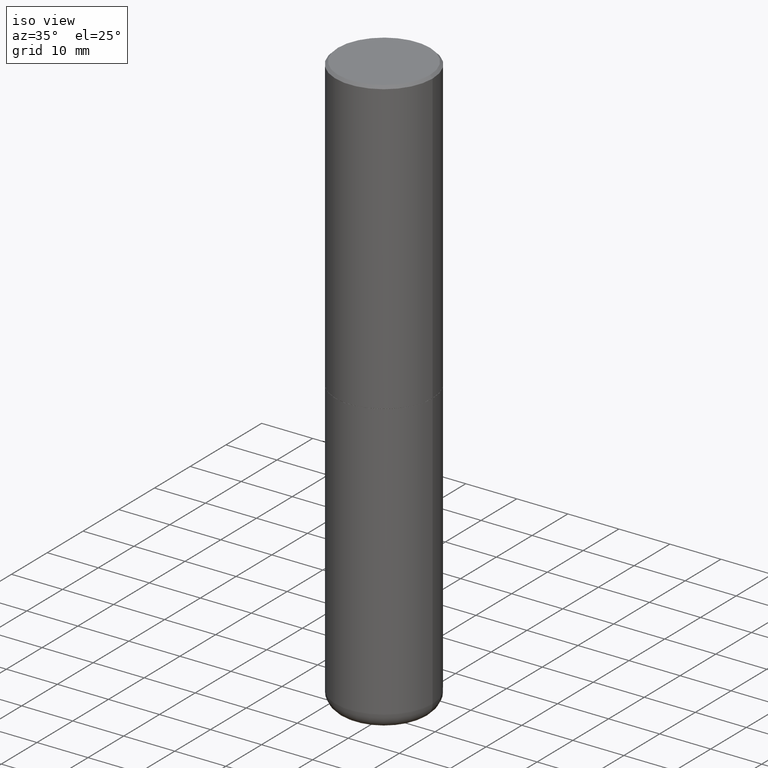
[diagram: clean part render]
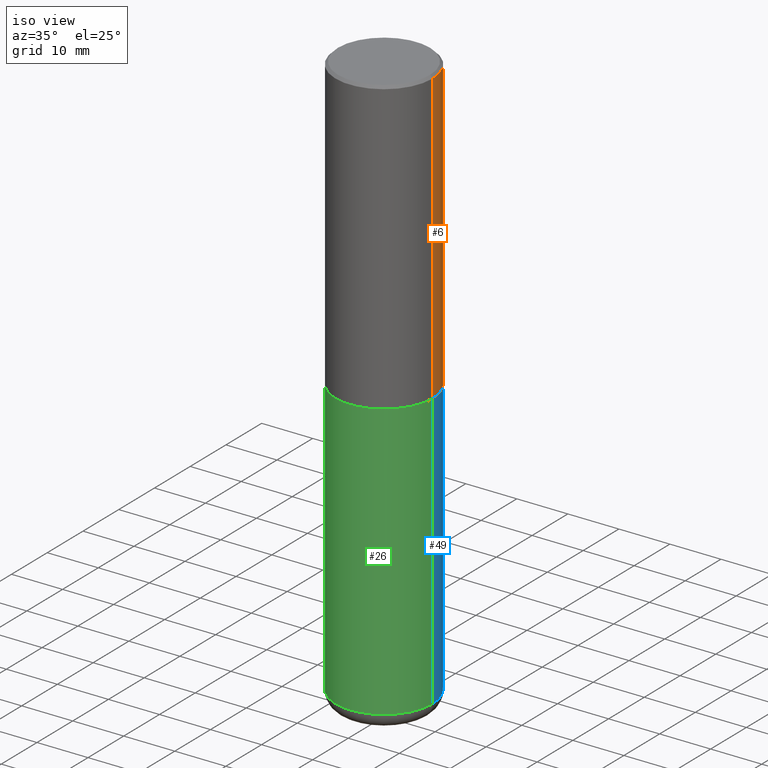
[diagram: same view with three faces highlighted in distinct colors, each labeled with its STEP entity id]
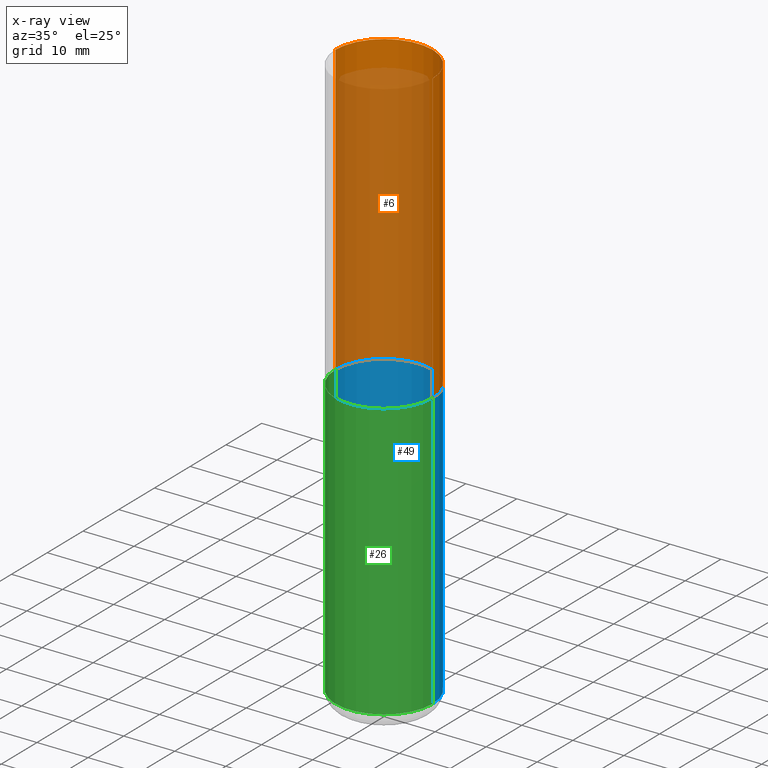
[diagram: x-ray of the same camera — body ghosted, the three highlighted faces saturated]
A machine part, iso view with three faces highlighted in distinct colors.
The next image is the same camera in x-ray (body ghosted, the three faces saturated) — at least one of them is partly hidden behind the body in this view.
Their STEP definitions:

[orange] entity #6 — the highlighted cylindrical surface (partial cylindrical patch) has radius 9.525 mm, axis along (-0, 0, 1).
#1 = CIRCLE ( 'NONE', #307, 0.3750000000000001110 ) ;
#6 = ADVANCED_FACE ( 'NONE', ( #128 ), #8, .T. ) ;
#8 = CYLINDRICAL_SURFACE ( 'NONE', #367, 0.3750000000000002220 ) ;
#9 = ORIENTED_EDGE ( 'NONE', *, *, #165, .T. ) ;
#28 = DIRECTION ( 'NONE',  ( 1.000000000000000000, -6.982962677686266711E-15, 4.876176775795935793E-29 ) ) ;
#30 = DIRECTION ( 'NONE',  ( -2.445468806185136597E-29, 3.491481338843145583E-15, 1.000000000000000000 ) ) ;
#65 = ORIENTED_EDGE ( 'NONE', *, *, #266, .T. ) ;
#99 = VERTEX_POINT ( 'NONE', #237 ) ;
#105 = CIRCLE ( 'NONE', #233, 0.3750000000000002776 ) ;
#115 = VECTOR ( 'NONE', #119, 39.37007874015748143 ) ;
#119 = DIRECTION ( 'NONE',  ( -2.445468806185136877E-29, 3.491481338843145188E-15, 1.000000000000000000 ) ) ;
#128 = FACE_OUTER_BOUND ( 'NONE', #217, .T. ) ;
#152 = DIRECTION ( 'NONE',  ( -2.445468806185136597E-29, 3.491481338843145583E-15, 1.000000000000000000 ) ) ;
#156 = CARTESIAN_POINT ( 'NONE',  ( 0.3750000000000002776, -1.047095253519058704E-14, -2.249000000000000110 ) ) ;
#161 = CARTESIAN_POINT ( 'NONE',  ( 0.3750000000000001110, -2.642516375941188423E-15, -0.02000000000000008715 ) ) ;
#165 = EDGE_CURVE ( 'NONE', #99, #322, #242, .T. ) ;
#175 = VERTEX_POINT ( 'NONE', #161 ) ;
#184 = DIRECTION ( 'NONE',  ( 1.000000000000000000, -6.982962677686265922E-15, 0.000000000000000000 ) ) ;
#185 = EDGE_CURVE ( 'NONE', #175, #322, #1, .T. ) ;
#189 = CARTESIAN_POINT ( 'NONE',  ( -0.3750000000000002220, 2.664535259100377275E-15, -1.844600658845590719E-29 ) ) ;
#196 = ORIENTED_EDGE ( 'NONE', *, *, #185, .F. ) ;
#200 = VECTOR ( 'NONE', #342, 39.37007874015748143 ) ;
#204 = VERTEX_POINT ( 'NONE', #156 ) ;
#216 = DIRECTION ( 'NONE',  ( -2.445468806185136597E-29, 3.491481338843145583E-15, 1.000000000000000000 ) ) ;
#217 = EDGE_LOOP ( 'NONE', ( #65, #9, #196, #389 ) ) ;
#233 = AXIS2_PLACEMENT_3D ( 'NONE', #317, #30, #413 ) ;
#237 = CARTESIAN_POINT ( 'NONE',  ( -0.3750000000000002776, -1.296550319817170517E-15, -2.249000000000000110 ) ) ;
#242 = LINE ( 'NONE', #189, #200 ) ;
#266 = EDGE_CURVE ( 'NONE', #204, #99, #105, .T. ) ;
#279 = LINE ( 'NONE', #409, #115 ) ;
#307 = AXIS2_PLACEMENT_3D ( 'NONE', #408, #152, #184 ) ;
#309 = EDGE_CURVE ( 'NONE', #204, #175, #279, .T. ) ;
#317 = CARTESIAN_POINT ( 'NONE',  ( 5.499859345110371740E-29, -7.852341531058233864E-15, -2.249000000000000110 ) ) ;
#322 = VERTEX_POINT ( 'NONE', #377 ) ;
#342 = DIRECTION ( 'NONE',  ( -2.445468806185136877E-29, 3.491481338843145188E-15, 1.000000000000000000 ) ) ;
#344 = CARTESIAN_POINT ( 'NONE',  ( 0.000000000000000000, 0.000000000000000000, 0.000000000000000000 ) ) ;
#367 = AXIS2_PLACEMENT_3D ( 'NONE', #344, #216, #28 ) ;
#377 = CARTESIAN_POINT ( 'NONE',  ( -0.3750000000000001110, 2.548781377355487113E-15, -0.02000000000000008715 ) ) ;
#389 = ORIENTED_EDGE ( 'NONE', *, *, #309, .F. ) ;
#408 = CARTESIAN_POINT ( 'NONE',  ( 4.890937612370294178E-31, -6.982962677686321191E-17, -0.02000000000000008715 ) ) ;
#409 = CARTESIAN_POINT ( 'NONE',  ( 0.3750000000000002220, -2.618611004132351594E-15, 1.828566290923477043E-29 ) ) ;
#413 = DIRECTION ( 'NONE',  ( 1.000000000000000000, -6.982962677686267499E-15, 0.000000000000000000 ) ) ;

[blue] entity #49 — the highlighted cylindrical surface (partial cylindrical patch) has radius 9.525 mm, axis along (-0, 0, 1).
#10 = DIRECTION ( 'NONE',  ( -2.445468806185136597E-29, 3.491481338843145583E-15, 1.000000000000000000 ) ) ;
#23 = AXIS2_PLACEMENT_3D ( 'NONE', #355, #10, #38 ) ;
#24 = CARTESIAN_POINT ( 'NONE',  ( 0.3750000000000000555, -1.047444401652942689E-14, -2.250000000000000000 ) ) ;
#25 = DIRECTION ( 'NONE',  ( 1.000000000000000000, -6.982962677686261189E-15, 0.000000000000000000 ) ) ;
#29 = VECTOR ( 'NONE', #225, 39.37007874015748143 ) ;
#38 = DIRECTION ( 'NONE',  ( 1.000000000000000000, -6.982962677686264344E-15, 0.000000000000000000 ) ) ;
#43 = CARTESIAN_POINT ( 'NONE',  ( 0.000000000000000000, 0.000000000000000000, 0.000000000000000000 ) ) ;
#49 = ADVANCED_FACE ( 'NONE', ( #386 ), #394, .T. ) ;
#63 = VERTEX_POINT ( 'NONE', #88 ) ;
#69 = LINE ( 'NONE', #258, #270 ) ;
#88 = CARTESIAN_POINT ( 'NONE',  ( -0.3750000000000000555, -8.909725379164652081E-15, -2.250000000000000000 ) ) ;
#94 = ORIENTED_EDGE ( 'NONE', *, *, #379, .T. ) ;
#101 = EDGE_LOOP ( 'NONE', ( #326, #94, #166, #133 ) ) ;
#104 = DIRECTION ( 'NONE',  ( 1.000000000000000000, -6.982962677686265922E-15, 4.876176775795935793E-29 ) ) ;
#109 = CIRCLE ( 'NONE', #368, 0.3750000000000000555 ) ;
#117 = CARTESIAN_POINT ( 'NONE',  ( -0.3750000000000001110, -1.262815300503259983E-14, -4.379999999999999893 ) ) ;
#133 = ORIENTED_EDGE ( 'NONE', *, *, #337, .F. ) ;
#166 = ORIENTED_EDGE ( 'NONE', *, *, #390, .F. ) ;
#176 = LINE ( 'NONE', #300, #29 ) ;
#179 = CIRCLE ( 'NONE', #23, 0.3750000000000000555 ) ;
#225 = DIRECTION ( 'NONE',  ( -2.445468806185136877E-29, 3.491481338843145188E-15, 1.000000000000000000 ) ) ;
#228 = DIRECTION ( 'NONE',  ( -2.445468806185136877E-29, 3.491481338843145188E-15, 1.000000000000000000 ) ) ;
#231 = EDGE_CURVE ( 'NONE', #315, #285, #109, .T. ) ;
#246 = CARTESIAN_POINT ( 'NONE',  ( 0.3750000000000001110, -1.791129926826532712E-14, -4.379999999999999893 ) ) ;
#251 = VERTEX_POINT ( 'NONE', #24 ) ;
#258 = CARTESIAN_POINT ( 'NONE',  ( -0.3750000000000000555, 2.664535259100376091E-15, -1.844600658845589598E-29 ) ) ;
#270 = VECTOR ( 'NONE', #228, 39.37007874015748143 ) ;
#276 = DIRECTION ( 'NONE',  ( -2.445468806185136597E-29, 3.491481338843145583E-15, 1.000000000000000000 ) ) ;
#285 = VERTEX_POINT ( 'NONE', #117 ) ;
#300 = CARTESIAN_POINT ( 'NONE',  ( 0.3750000000000000555, -2.618611004132350016E-15, 1.828566290923476203E-29 ) ) ;
#314 = CARTESIAN_POINT ( 'NONE',  ( 1.071115337109089838E-28, -1.529268826413297711E-14, -4.379999999999999893 ) ) ;
#315 = VERTEX_POINT ( 'NONE', #246 ) ;
#326 = ORIENTED_EDGE ( 'NONE', *, *, #231, .T. ) ;
#337 = EDGE_CURVE ( 'NONE', #315, #251, #176, .T. ) ;
#355 = CARTESIAN_POINT ( 'NONE',  ( 5.502304813916557343E-29, -7.855833012397078448E-15, -2.250000000000000000 ) ) ;
#357 = DIRECTION ( 'NONE',  ( -2.445468806185136597E-29, 3.491481338843145583E-15, 1.000000000000000000 ) ) ;
#368 = AXIS2_PLACEMENT_3D ( 'NONE', #314, #276, #25 ) ;
#375 = AXIS2_PLACEMENT_3D ( 'NONE', #43, #357, #104 ) ;
#379 = EDGE_CURVE ( 'NONE', #285, #63, #69, .T. ) ;
#386 = FACE_OUTER_BOUND ( 'NONE', #101, .T. ) ;
#390 = EDGE_CURVE ( 'NONE', #251, #63, #179, .T. ) ;
#394 = CYLINDRICAL_SURFACE ( 'NONE', #375, 0.3750000000000000555 ) ;

[green] entity #26 — the highlighted cylindrical surface (partial cylindrical patch) has radius 9.525 mm, axis along (-0, 0, 1).
#24 = CARTESIAN_POINT ( 'NONE',  ( 0.3750000000000000555, -1.047444401652942689E-14, -2.250000000000000000 ) ) ;
#26 = ADVANCED_FACE ( 'NONE', ( #380 ), #96, .T. ) ;
#29 = VECTOR ( 'NONE', #225, 39.37007874015748143 ) ;
#33 = DIRECTION ( 'NONE',  ( 1.000000000000000000, -6.982962677686265922E-15, 4.876176775795935793E-29 ) ) ;
#63 = VERTEX_POINT ( 'NONE', #88 ) ;
#69 = LINE ( 'NONE', #258, #270 ) ;
#85 = DIRECTION ( 'NONE',  ( 1.000000000000000000, -6.982962677686264344E-15, 0.000000000000000000 ) ) ;
#87 = EDGE_CURVE ( 'NONE', #63, #251, #120, .T. ) ;
#88 = CARTESIAN_POINT ( 'NONE',  ( -0.3750000000000000555, -8.909725379164652081E-15, -2.250000000000000000 ) ) ;
#96 = CYLINDRICAL_SURFACE ( 'NONE', #280, 0.3750000000000000555 ) ;
#117 = CARTESIAN_POINT ( 'NONE',  ( -0.3750000000000001110, -1.262815300503259983E-14, -4.379999999999999893 ) ) ;
#120 = CIRCLE ( 'NONE', #244, 0.3750000000000000555 ) ;
#122 = CARTESIAN_POINT ( 'NONE',  ( 1.071115337109089838E-28, -1.529268826413297711E-14, -4.379999999999999893 ) ) ;
#146 = CARTESIAN_POINT ( 'NONE',  ( 5.502304813916557343E-29, -7.855833012397078448E-15, -2.250000000000000000 ) ) ;
#171 = ORIENTED_EDGE ( 'NONE', *, *, #379, .F. ) ;
#176 = LINE ( 'NONE', #300, #29 ) ;
#186 = DIRECTION ( 'NONE',  ( -2.445468806185136597E-29, 3.491481338843145583E-15, 1.000000000000000000 ) ) ;
#190 = DIRECTION ( 'NONE',  ( -2.445468806185136597E-29, 3.491481338843145583E-15, 1.000000000000000000 ) ) ;
#192 = ORIENTED_EDGE ( 'NONE', *, *, #87, .F. ) ;
#197 = CIRCLE ( 'NONE', #275, 0.3750000000000000555 ) ;
#225 = DIRECTION ( 'NONE',  ( -2.445468806185136877E-29, 3.491481338843145188E-15, 1.000000000000000000 ) ) ;
#228 = DIRECTION ( 'NONE',  ( -2.445468806185136877E-29, 3.491481338843145188E-15, 1.000000000000000000 ) ) ;
#229 = EDGE_CURVE ( 'NONE', #285, #315, #197, .T. ) ;
#241 = DIRECTION ( 'NONE',  ( -2.445468806185136597E-29, 3.491481338843145583E-15, 1.000000000000000000 ) ) ;
#244 = AXIS2_PLACEMENT_3D ( 'NONE', #146, #241, #85 ) ;
#246 = CARTESIAN_POINT ( 'NONE',  ( 0.3750000000000001110, -1.791129926826532712E-14, -4.379999999999999893 ) ) ;
#247 = DIRECTION ( 'NONE',  ( 1.000000000000000000, -6.982962677686261189E-15, 0.000000000000000000 ) ) ;
#251 = VERTEX_POINT ( 'NONE', #24 ) ;
#258 = CARTESIAN_POINT ( 'NONE',  ( -0.3750000000000000555, 2.664535259100376091E-15, -1.844600658845589598E-29 ) ) ;
#270 = VECTOR ( 'NONE', #228, 39.37007874015748143 ) ;
#275 = AXIS2_PLACEMENT_3D ( 'NONE', #122, #186, #247 ) ;
#280 = AXIS2_PLACEMENT_3D ( 'NONE', #320, #190, #33 ) ;
#285 = VERTEX_POINT ( 'NONE', #117 ) ;
#288 = ORIENTED_EDGE ( 'NONE', *, *, #337, .T. ) ;
#300 = CARTESIAN_POINT ( 'NONE',  ( 0.3750000000000000555, -2.618611004132350016E-15, 1.828566290923476203E-29 ) ) ;
#315 = VERTEX_POINT ( 'NONE', #246 ) ;
#320 = CARTESIAN_POINT ( 'NONE',  ( 0.000000000000000000, 0.000000000000000000, 0.000000000000000000 ) ) ;
#337 = EDGE_CURVE ( 'NONE', #315, #251, #176, .T. ) ;
#349 = EDGE_LOOP ( 'NONE', ( #171, #388, #288, #192 ) ) ;
#379 = EDGE_CURVE ( 'NONE', #285, #63, #69, .T. ) ;
#380 = FACE_OUTER_BOUND ( 'NONE', #349, .T. ) ;
#388 = ORIENTED_EDGE ( 'NONE', *, *, #229, .T. ) ;